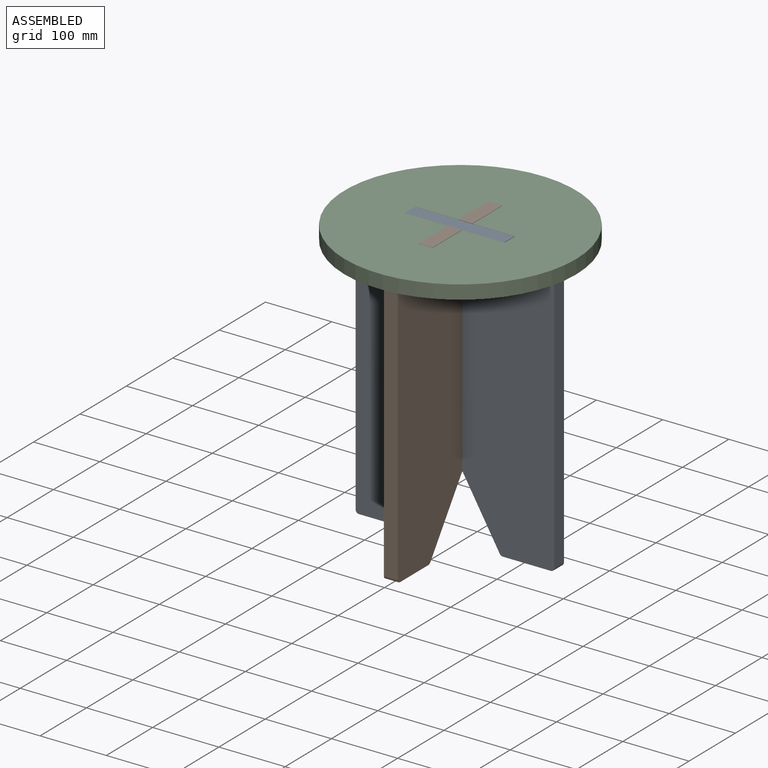
[diagram: assembled view]
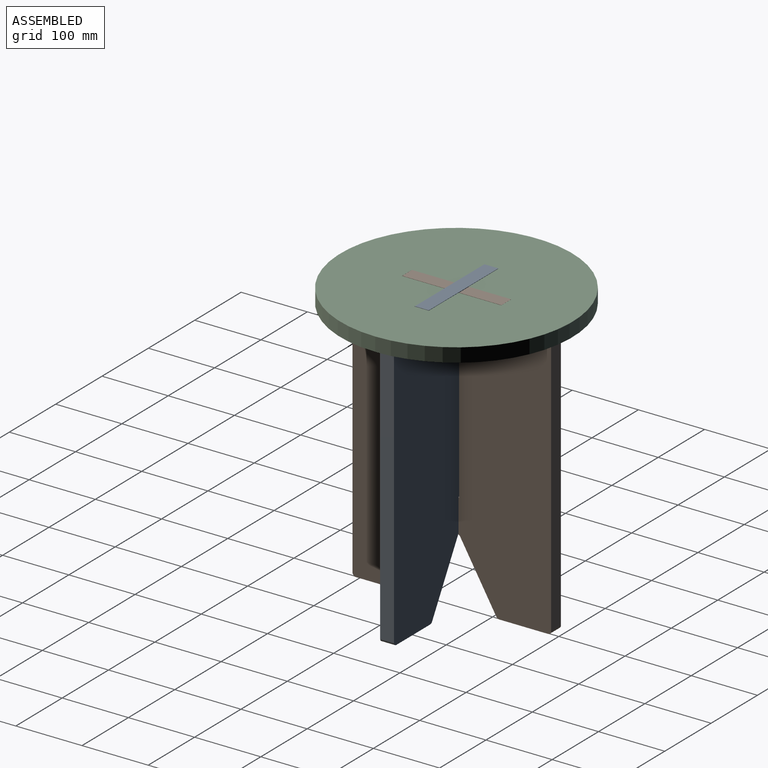
[diagram: assembled view, second angle]
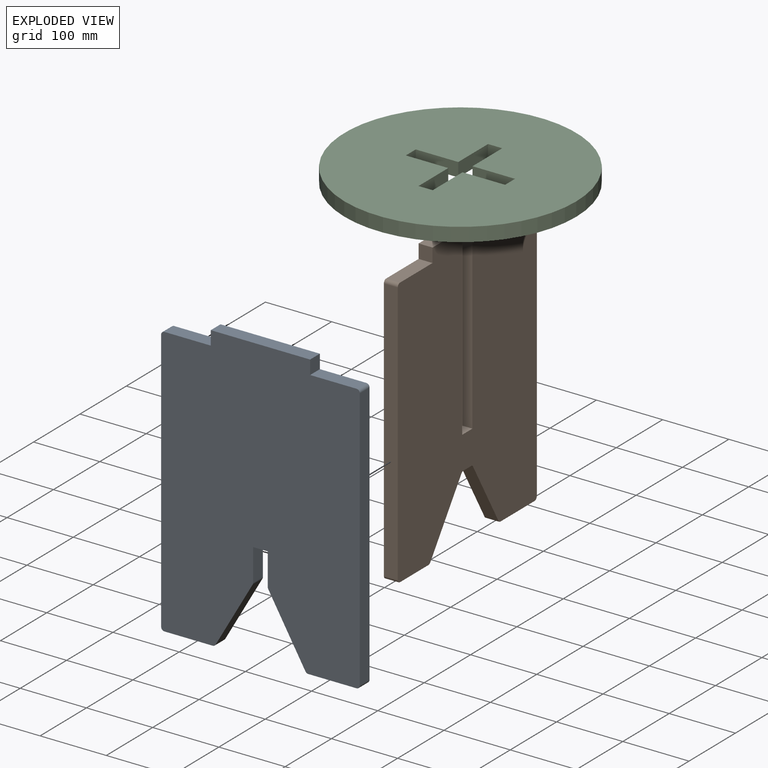
[diagram: exploded view]
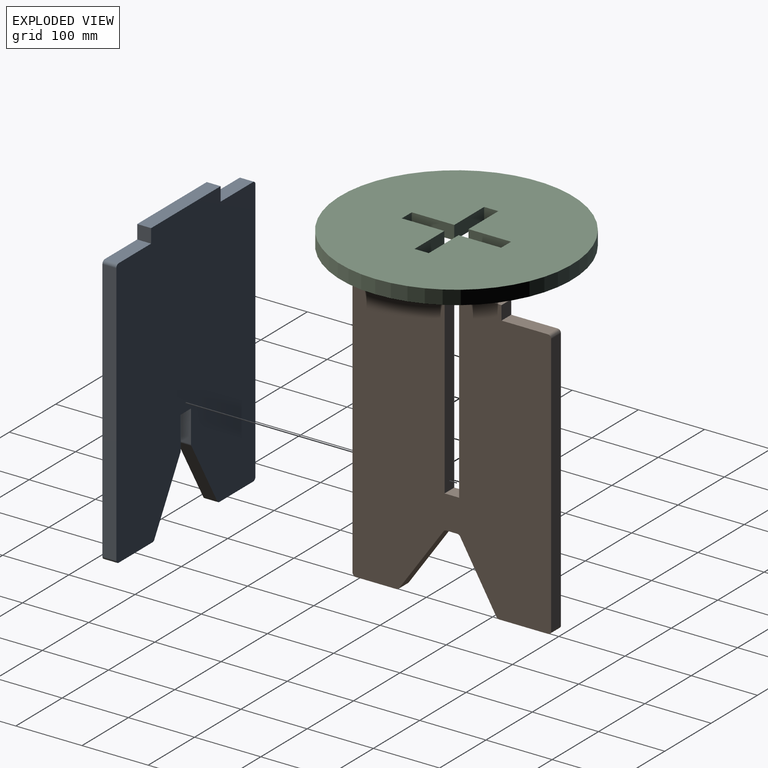
[diagram: exploded view, second angle]
ASSEMBLY  parts=3 mates=5
PART A: 24 faces, bbox 300x21x430 mm
  f0: plane 70x21mm, normal (0,0,1), area 1470mm2, adj f1,f21,f22,f23
  f1: plane 21.1x21mm, normal (1,0,0), area 443.1mm2, adj f0,f2,f22,f23
  f2: plane 150x21mm, normal (0,0,1), area 3150mm2, adj f1,f3,f22,f23
  f3: plane 21.1x21mm, normal (-1,0,0), area 443.1mm2, adj f2,f4,f22,f23
  f4: plane 70x21mm, normal (0,0,1), area 1470mm2, adj f3,f5,f22,f23
  f5: cylinder r=5mm len=21mm, axis (0,1,0), area 164.9mm2, adj f4,f6,f22,f23
  f6: plane 398.9x21mm, normal (-1,0,0), area 8376.9mm2, adj f5,f7,f22,f23
  f7: cylinder r=5mm len=21mm, axis (0,1,0), area 164.9mm2, adj f6,f8,f22,f23
  f8: plane 72.8x21mm, normal (0,0,-1), area 1528.8mm2, adj f7,f9,f22,f23
  f9: cylinder r=5mm len=21mm, axis (0,1,0), area 110mm2, adj f8,f10,f22,f23
  f10: plane 97.34x56.2mm, normal (0.87,0,-0.5), area 2360.4mm2, adj f9,f11,f22,f23
  f11: cylinder r=5mm len=21mm, axis (0,1,0), area 55mm2, adj f10,f12,f22,f23
  f12: plane 48.66x21mm, normal (1,0,0), area 1021.9mm2, adj f11,f13,f22,f23
  f13: plane 22x21mm, normal (0,0,-1), area 462mm2, adj f12,f14,f22,f23
  f14: plane 48.66x21mm, normal (-1,0,0), area 1021.9mm2, adj f13,f15,f22,f23
  f15: cylinder r=5mm len=21mm, axis (0,1,0), area 55mm2, adj f14,f16,f22,f23
  f16: plane 97.34x56.2mm, normal (-0.87,0,-0.5), area 2360.4mm2, adj f15,f17,f22,f23
  f17: cylinder r=5mm len=21mm, axis (0,1,0), area 110mm2, adj f16,f18,f22,f23
  f18: plane 72.8x21mm, normal (0,0,-1), area 1528.8mm2, adj f17,f19,f22,f23
  f19: cylinder r=5mm len=21mm, axis (0,1,0), area 164.9mm2, adj f18,f20,f22,f23
  f20: plane 398.9x21mm, normal (1,0,0), area 8376.9mm2, adj f19,f21,f22,f23
  f21: cylinder r=5mm len=21mm, axis (0,1,0), area 164.9mm2, adj f0,f20,f22,f23
  f22: plane 430x300mm, normal (0,-1,0), area 116599mm2, adj f0,f1,f2,f3,f4,f5,f6,f7
  f23: plane 430x300mm, normal (0,1,0), area 116599mm2, adj f0,f1,f2,f3,f4,f5,f6,f7
PART B: 26 faces, bbox 21x300x430 mm
  f0: plane 398.9x21mm, normal (0,1,0), area 8376.9mm2, adj f1,f23,f24,f25
  f1: cylinder r=5mm len=21mm, axis (-1,0,0), area 164.9mm2, adj f0,f2,f24,f25
  f2: plane 70x21mm, normal (0,0,1), area 1470mm2, adj f1,f3,f24,f25
  f3: plane 21.1x21mm, normal (0,1,0), area 443.1mm2, adj f2,f4,f24,f25
  f4: plane 64x21mm, normal (0,0,1), area 1344mm2, adj f3,f5,f24,f25
  f5: plane 280x21mm, normal (0,-1,0), area 5880mm2, adj f4,f6,f24,f25
  f6: plane 22x21mm, normal (0,0,1), area 462mm2, adj f5,f7,f24,f25
  f7: plane 280x21mm, normal (0,1,0), area 5880mm2, adj f6,f8,f24,f25
  f8: plane 64x21mm, normal (0,0,1), area 1344mm2, adj f7,f9,f24,f25
  f9: plane 21.1x21mm, normal (0,-1,0), area 443.1mm2, adj f8,f10,f24,f25
  f10: plane 70x21mm, normal (0,0,1), area 1470mm2, adj f9,f11,f24,f25
  f11: cylinder r=5mm len=21mm, axis (-1,0,0), area 164.9mm2, adj f10,f12,f24,f25
  f12: plane 398.9x21mm, normal (0,-1,0), area 8376.9mm2, adj f11,f13,f24,f25
  f13: cylinder r=5mm len=21mm, axis (-1,0,0), area 164.9mm2, adj f12,f14,f24,f25
  f14: plane 61.14x21mm, normal (0,0,-1), area 1283.9mm2, adj f13,f15,f24,f25
  f15: cylinder r=5mm len=21mm, axis (-1,0,0), area 100.6mm2, adj f14,f16,f24,f25
  f16: plane 95.75x67.28mm, normal (0,0.82,-0.57), area 2457.5mm2, adj f15,f17,f24,f25
  f17: cylinder r=5mm len=21mm, axis (-1,0,0), area 100.6mm2, adj f16,f18,f24,f25
  f18: plane 21x16.52mm, normal (0,0,-1), area 346.8mm2, adj f17,f19,f24,f25
  f19: cylinder r=5mm len=21mm, axis (-1,0,0), area 110mm2, adj f18,f20,f24,f25
  f20: plane 95x54.85mm, normal (0,-0.87,-0.5), area 2303.6mm2, adj f19,f21,f24,f25
  f21: cylinder r=5mm len=21mm, axis (-1,0,0), area 110mm2, adj f20,f22,f24,f25
  f22: plane 73.38x21mm, normal (0,0,-1), area 1540.9mm2, adj f21,f23,f24,f25
  f23: cylinder r=5mm len=21mm, axis (-1,0,0), area 164.9mm2, adj f0,f22,f24,f25
  f24: plane 430x300mm, normal (1,0,0), area 111053.5mm2, adj f0,f1,f2,f3,f4,f5,f6,f7
  f25: plane 430x300mm, normal (-1,0,0), area 111053.5mm2, adj f0,f1,f2,f3,f4,f5,f6,f7
PART C: 15 faces, bbox 350x350x21 mm
  f0: plane 64.25x21mm, normal (1,0,0), area 1349.3mm2, adj f1,f11,f13,f14
  f1: plane 21.5x21mm, normal (0,-1,0), area 451.5mm2, adj f0,f2,f13,f14
  f2: plane 64.25x21mm, normal (-1,0,0), area 1349.3mm2, adj f1,f3,f13,f14
  f3: plane 64.25x21mm, normal (0,-1,0), area 1349.3mm2, adj f2,f4,f13,f14
  f4: plane 21.5x21mm, normal (-1,0,0), area 451.5mm2, adj f3,f5,f13,f14
  f5: plane 64.25x21mm, normal (0,1,0), area 1349.3mm2, adj f4,f6,f13,f14
  f6: plane 64.25x21mm, normal (-1,0,0), area 1349.3mm2, adj f5,f7,f13,f14
  f7: plane 21.5x21mm, normal (0,1,0), area 451.5mm2, adj f6,f8,f13,f14
  f8: plane 64.25x21mm, normal (1,0,0), area 1349.3mm2, adj f7,f9,f13,f14
  f9: plane 64.25x21mm, normal (0,1,0), area 1349.3mm2, adj f8,f10,f13,f14
  f10: plane 21.5x21mm, normal (1,0,0), area 451.5mm2, adj f9,f11,f13,f14
  f11: plane 64.25x21mm, normal (0,-1,0), area 1349.3mm2, adj f0,f10,f13,f14
  f12: cylinder r=175mm len=350mm, axis (0,0,-1), area 23090.7mm2, adj f13,f14
  f13: plane 350x350mm, normal (0,0,1), area 90223.5mm2, adj f0,f1,f2,f3,f4,f5,f6,f7
  f14: plane 350x350mm, normal (0,0,-1), area 90223.5mm2, adj f0,f1,f2,f3,f4,f5,f6,f7
PLACE A t=(-192.12,251.22,-1.38)mm
PLACE B t=(-191.62,251.72,-1.38)mm
PLACE C t=(-191.37,251.47,407.52)mm
MATE planar B.f25 <-> C.f0  axis (-1,0,0) through (-202.12,294.72,428.62)mm
MATE planar A.f22 <-> B.f7  axis (0,-1,0) through (-192.12,240.72,221.21)mm
MATE planar A.f22 <-> C.f5  axis (0,-1,0) through (-192.12,240.72,221.21)mm
MATE planar C.f14 <-> A.f4  axis (0,0,-1) through (-266.37,240.72,407.52)mm
MATE planar C.f14 <-> B.f2  axis (0,0,-1) through (-191.37,326.47,407.52)mm
